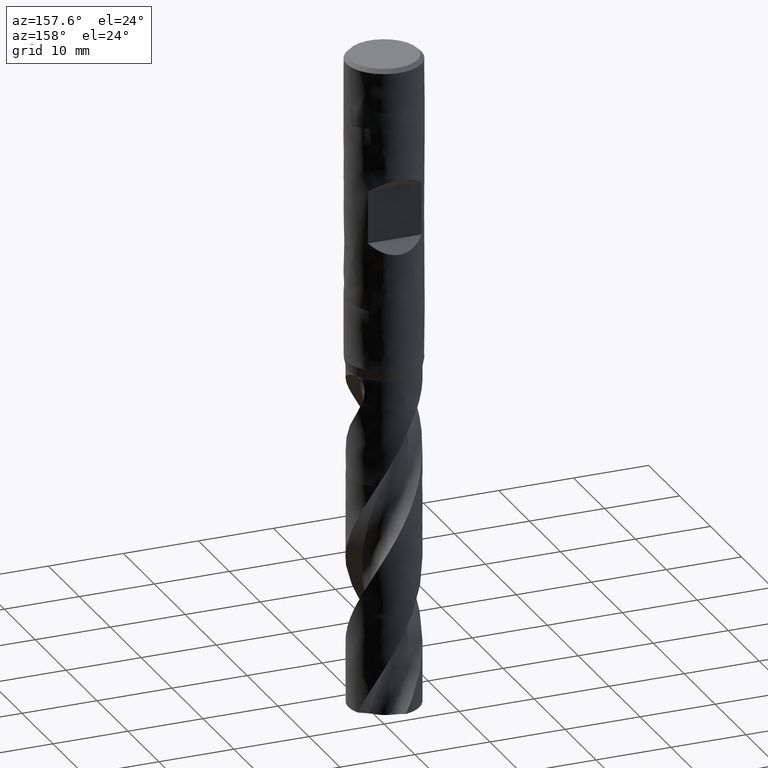
[diagram: clean part render]
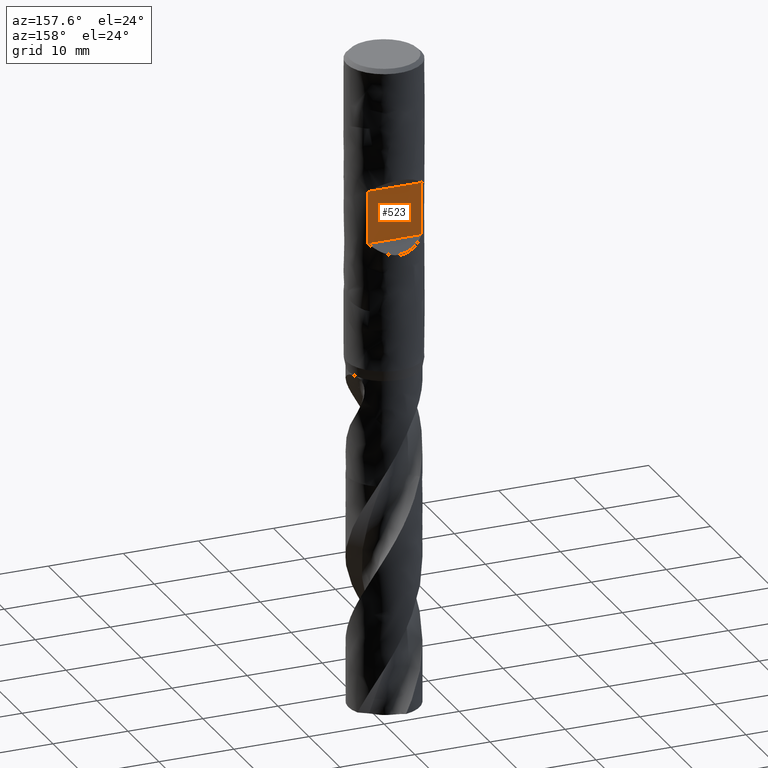
[diagram: same view with one face highlighted and labeled with its STEP entity id]
A machine part, auxiliary view. The second image highlights one B-rep face of the part: STEP entity #523.
In plain terms, the highlighted planar face has unit normal (0, 1, 0).
Its self-contained STEP definition (entity closure, byte-faithful):
#321 = EDGE_CURVE('', #322, #324, #326, .T.);
#322 = VERTEX_POINT('', #323);
#323 = CARTESIAN_POINT('', (3.57071421427142, 3.5, -16.5));
#324 = VERTEX_POINT('', #325);
#325 = CARTESIAN_POINT('', (3.57071421427142, 3.5, -23.5));
#326 = LINE('', #327, #328);
#327 = CARTESIAN_POINT('', (3.57071421427142, 3.5, -16.5));
#328 = VECTOR('', #329, 7.);
#329 = DIRECTION('', (-4.44089209850063E-16, 4.44089209850063E-16, -7.));
#332 = VERTEX_POINT('', #333);
#333 = CARTESIAN_POINT('', (-3.57071421427143, 3.5, -16.5));
#418 = EDGE_CURVE('', #332, #419, #421, .T.);
#419 = VERTEX_POINT('', #420);
#420 = CARTESIAN_POINT('', (-3.57071421427142, 3.5, -23.5));
#421 = LINE('', #422, #423);
#422 = CARTESIAN_POINT('', (-3.57071421427143, 3.5, -16.5));
#423 = VECTOR('', #424, 6.99999999999999);
#424 = DIRECTION('', (1.33226762955019E-15, 8.88178419700125E-16, -6.99999999999999));
#523 = ADVANCED_FACE('', (#524), #540, .T.);
#524 = FACE_OUTER_BOUND('', #525, .T.);
#525 = EDGE_LOOP('', (#526, #527, #533, #534));
#526 = ORIENTED_EDGE('', *, *, #321, .T.);
#527 = ORIENTED_EDGE('', *, *, #528, .T.);
#528 = EDGE_CURVE('', #324, #419, #529, .T.);
#529 = LINE('', #530, #531);
#530 = CARTESIAN_POINT('', (3.57071421427142, 3.5, -23.5));
#531 = VECTOR('', #532, 7.14142842854285);
#532 = DIRECTION('', (-7.14142842854285, 4.44089209850063E-16, 0.));
#533 = ORIENTED_EDGE('', *, *, #418, .F.);
#534 = ORIENTED_EDGE('', *, *, #535, .F.);
#535 = EDGE_CURVE('', #322, #332, #536, .T.);
#536 = LINE('', #537, #538);
#537 = CARTESIAN_POINT('', (3.57071421427142, 3.5, -16.5));
#538 = VECTOR('', #539, 7.14142842854285);
#539 = DIRECTION('', (-7.14142842854285, 4.44089209850063E-16, 0.));
#540 = PLANE('', #541);
#541 = AXIS2_PLACEMENT_3D('', #542, #543, #544);
#542 = CARTESIAN_POINT('', (5., 3.5, -23.5));
#543 = DIRECTION('', (8.88178419700125E-17, 1., 6.34413156928661E-17));
#544 = DIRECTION('', (-1., 8.88178419700125E-17, 0.));